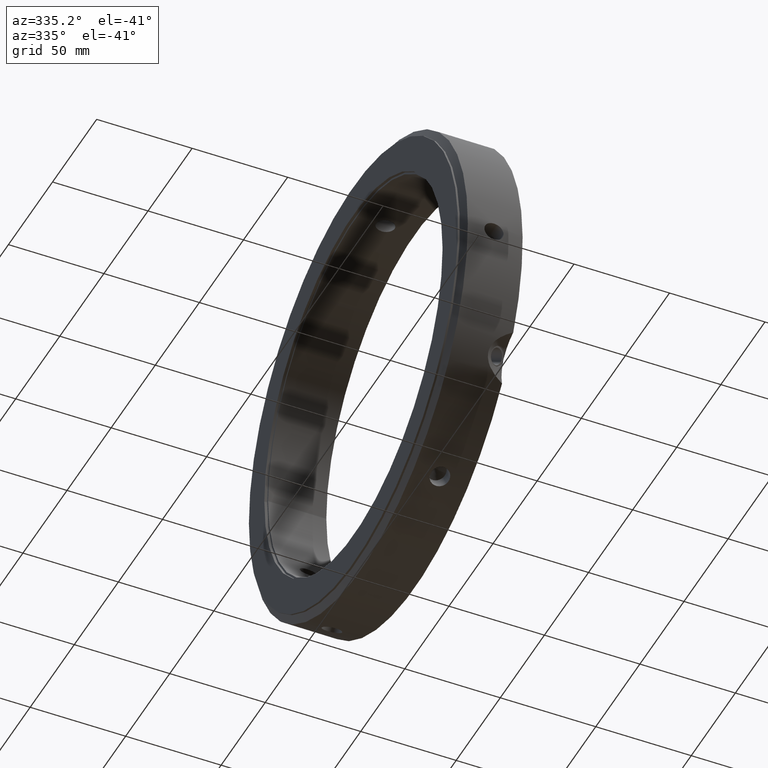
[diagram: clean part render]
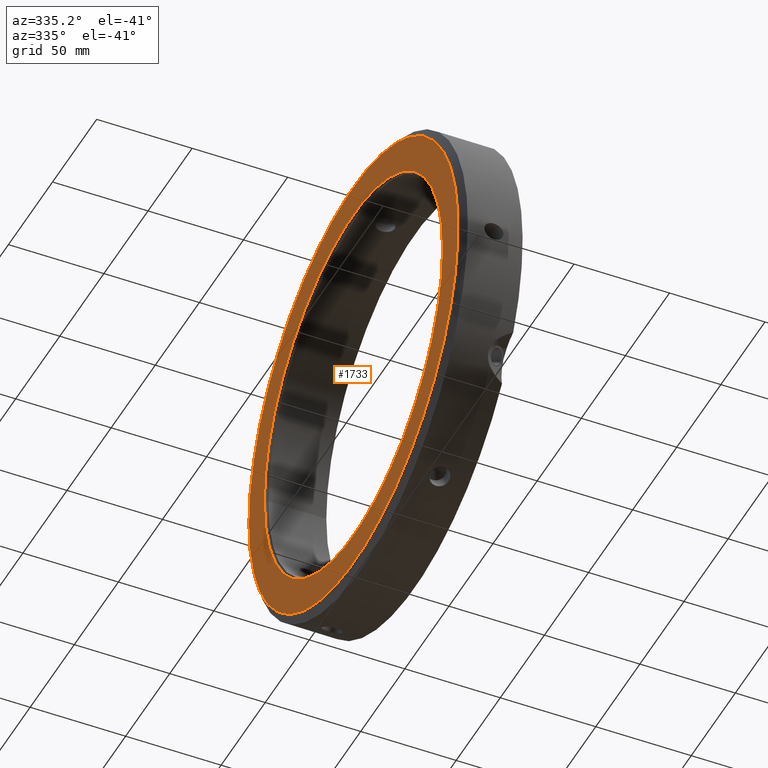
[diagram: same view with one face highlighted and labeled with its STEP entity id]
A machine part, auxiliary view. The second image highlights one B-rep face of the part: STEP entity #1733.
In plain terms, the highlighted planar face has unit normal (-1, 0, 0).
Its self-contained STEP definition (entity closure, byte-faithful):
#1699=CARTESIAN_POINT('',(-2.997602E-014,101.00000000000001,0.0));
#1700=VERTEX_POINT('',#1699);
#1701=CARTESIAN_POINT('',(-2.997602E-014,0.0,0.0));
#1702=DIRECTION('',(1.0,0.0,0.0));
#1703=DIRECTION('',(0.0,1.0,0.0));
#1704=AXIS2_PLACEMENT_3D('',#1701,#1702,#1703);
#1705=CIRCLE('',#1704,101.00000000000001);
#1706=EDGE_CURVE('',#1700,#1700,#1705,.T.);
#1714=CARTESIAN_POINT('',(-3.275158E-014,109.75000000000001,0.0));
#1715=DIRECTION('',(-1.0,0.0,0.0));
#1716=DIRECTION('',(0.0,0.0,1.0));
#1717=AXIS2_PLACEMENT_3D('',#1714,#1715,#1716);
#1718=PLANE('',#1717);
#1719=CARTESIAN_POINT('',(-3.552714E-014,118.50000000000001,0.0));
#1720=VERTEX_POINT('',#1719);
#1721=CARTESIAN_POINT('',(-3.552714E-014,0.0,0.0));
#1722=DIRECTION('',(1.0,0.0,0.0));
#1723=DIRECTION('',(0.0,1.0,0.0));
#1724=AXIS2_PLACEMENT_3D('',#1721,#1722,#1723);
#1725=CIRCLE('',#1724,118.50000000000001);
#1726=EDGE_CURVE('',#1720,#1720,#1725,.T.);
#1727=ORIENTED_EDGE('',*,*,#1726,.F.);
#1728=EDGE_LOOP('',(#1727));
#1729=FACE_OUTER_BOUND('',#1728,.T.);
#1730=ORIENTED_EDGE('',*,*,#1706,.T.);
#1731=EDGE_LOOP('',(#1730));
#1732=FACE_BOUND('',#1731,.T.);
#1733=ADVANCED_FACE('',(#1729,#1732),#1718,.T.);